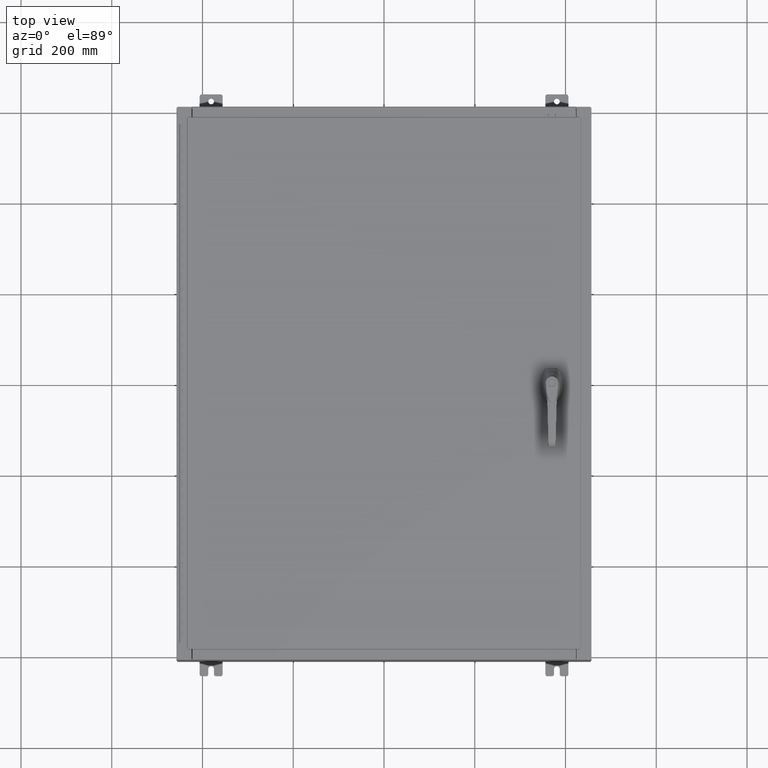
[diagram: clean part render]
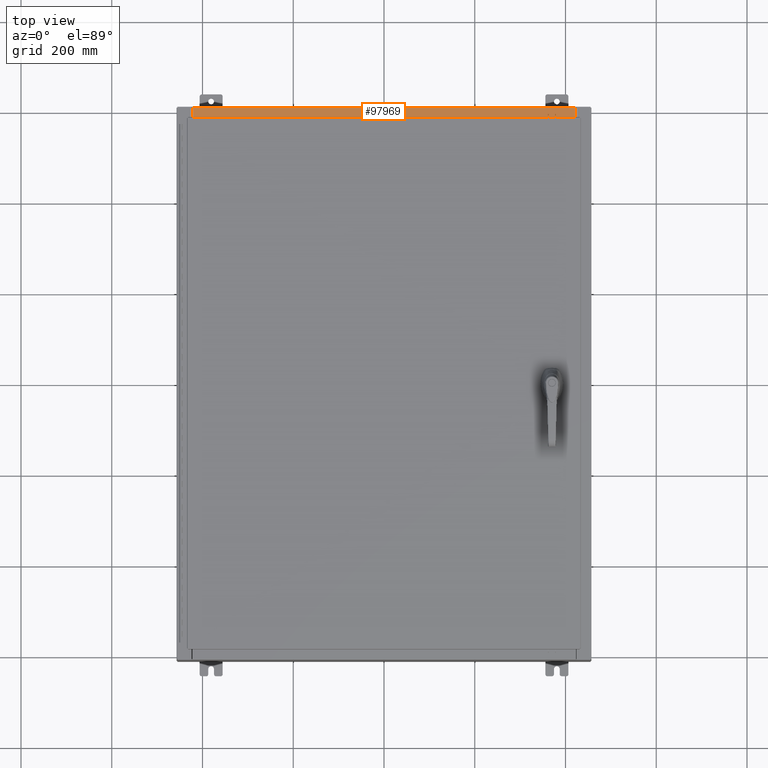
[diagram: same view with one face highlighted and labeled with its STEP entity id]
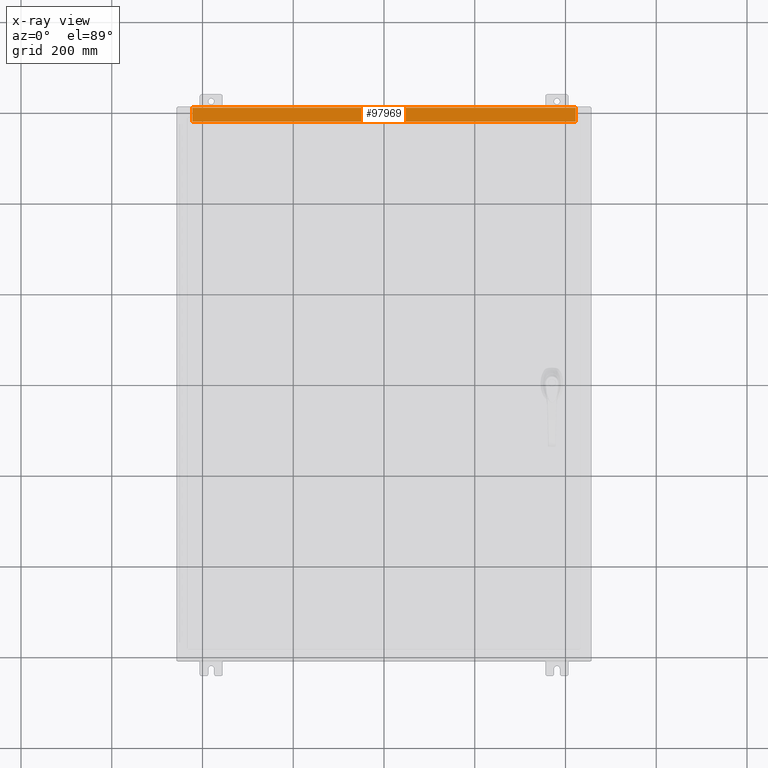
[diagram: x-ray of the same camera — body ghosted, the highlighted face saturated]
A machine part, top view. The second image highlights one B-rep face of the part: STEP entity #97969.
The next image is the same camera in x-ray: the body ghosted, the highlighted face saturated — about 0% of this face is hidden behind the body in this view.
In plain terms, the highlighted planar face has unit normal (0, 0, 1).
Its self-contained STEP definition (entity closure, byte-faithful):
#817 = LINE ( 'NONE', #62508, #86831 ) ;
#4888 = CARTESIAN_POINT ( 'NONE',  ( -16.63720000000000000, -0.07469999999999973900, 5.000000000000000000 ) ) ;
#11430 = CARTESIAN_POINT ( 'NONE',  ( 16.63720000000000400, -0.08770000000000047200, 5.000000000000000000 ) ) ;
#18328 = VERTEX_POINT ( 'NONE', #11430 ) ;
#25294 = DIRECTION ( 'NONE',  ( -0.0000000000000000000, 1.000000000000000000, -3.566381192773190000E-015 ) ) ;
#28539 = CARTESIAN_POINT ( 'NONE',  ( 0.0000000000000000000, 1.782631094477737600E-014, 5.000000000000000000 ) ) ;
#30966 = VECTOR ( 'NONE', #77845, 39.37007874015748100 ) ;
#34129 = LINE ( 'NONE', #4888, #37405 ) ;
#37405 = VECTOR ( 'NONE', #25294, 39.37007874015748100 ) ;
#49500 = VECTOR ( 'NONE', #63939, 39.37007874015748100 ) ;
#56524 = FACE_OUTER_BOUND ( 'NONE', #127835, .T. ) ;
#58684 = VERTEX_POINT ( 'NONE', #110006 ) ;
#59870 = DIRECTION ( 'NONE',  ( 0.0000000000000000000, 3.566381192773190000E-015, 1.000000000000000000 ) ) ;
#62508 = CARTESIAN_POINT ( 'NONE',  ( 2.880088825576501100E-018, -0.08770000000000081900, 5.000000000000000000 ) ) ;
#63939 = DIRECTION ( 'NONE',  ( -1.000000000000000000, 0.0000000000000000000, 0.0000000000000000000 ) ) ;
#65864 = CARTESIAN_POINT ( 'NONE',  ( -16.63720000000000000, -0.08770000000000081900, 5.000000000000000000 ) ) ;
#70559 = EDGE_CURVE ( 'NONE', #81545, #73332, #34129, .T. ) ;
#73332 = VERTEX_POINT ( 'NONE', #65864 ) ;
#73800 = ORIENTED_EDGE ( 'NONE', *, *, #132747, .F. ) ;
#77845 = DIRECTION ( 'NONE',  ( -0.0000000000000000000, -1.000000000000000000, 3.566381192773190000E-015 ) ) ;
#79693 = CARTESIAN_POINT ( 'NONE',  ( -16.63720000000000000, -1.287299999999999200, 5.000000000000004400 ) ) ;
#81545 = VERTEX_POINT ( 'NONE', #79693 ) ;
#83347 = EDGE_CURVE ( 'NONE', #58684, #81545, #98106, .T. ) ;
#86153 = LINE ( 'NONE', #88223, #30966 ) ;
#86831 = VECTOR ( 'NONE', #124545, 39.37007874015748100 ) ;
#88223 = CARTESIAN_POINT ( 'NONE',  ( 16.63720000000000000, -1.300299999999999800, 5.000000000000004400 ) ) ;
#92432 = EDGE_CURVE ( 'NONE', #18328, #73332, #817, .T. ) ;
#97969 = ADVANCED_FACE ( 'NONE', ( #56524 ), #121923, .T. ) ;
#98106 = LINE ( 'NONE', #105124, #49500 ) ;
#105124 = CARTESIAN_POINT ( 'NONE',  ( 16.63720000000000400, -1.287299999999999900, 5.000000000000002700 ) ) ;
#110006 = CARTESIAN_POINT ( 'NONE',  ( 16.63720000000000000, -1.287299999999999900, 5.000000000000004400 ) ) ;
#114248 = ORIENTED_EDGE ( 'NONE', *, *, #83347, .F. ) ;
#121923 = PLANE ( 'NONE',  #123641 ) ;
#123641 = AXIS2_PLACEMENT_3D ( 'NONE', #28539, #59870, #132354 ) ;
#123809 = ORIENTED_EDGE ( 'NONE', *, *, #92432, .T. ) ;
#124545 = DIRECTION ( 'NONE',  ( -1.000000000000000000, -3.284023746380717400E-017, 1.171208052571274300E-031 ) ) ;
#127835 = EDGE_LOOP ( 'NONE', ( #130032, #114248, #73800, #123809 ) ) ;
#130032 = ORIENTED_EDGE ( 'NONE', *, *, #70559, .F. ) ;
#132354 = DIRECTION ( 'NONE',  ( 0.0000000000000000000, -1.000000000000000000, 3.566381192773190000E-015 ) ) ;
#132747 = EDGE_CURVE ( 'NONE', #18328, #58684, #86153, .T. ) ;